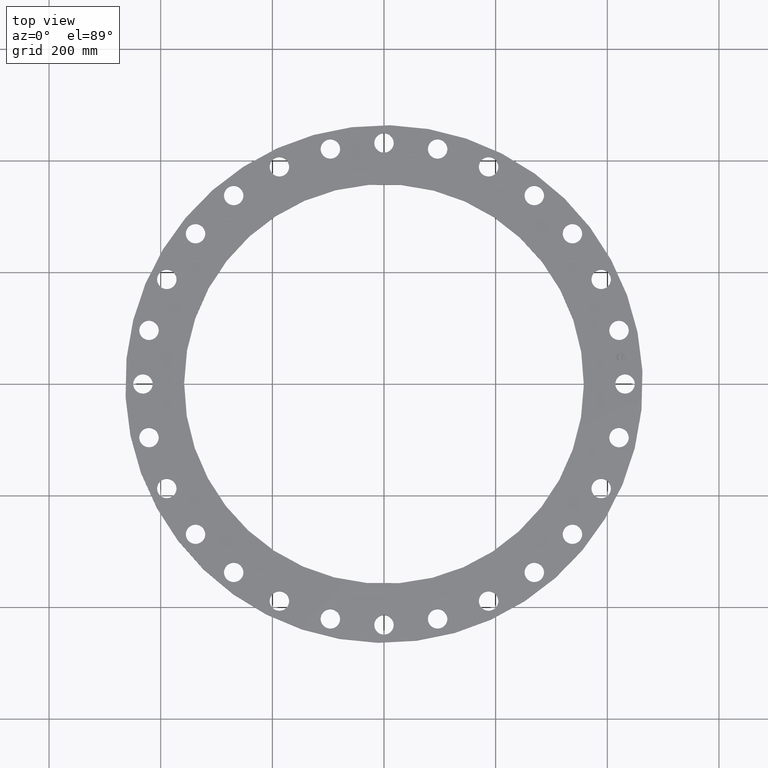
[diagram: clean part render]
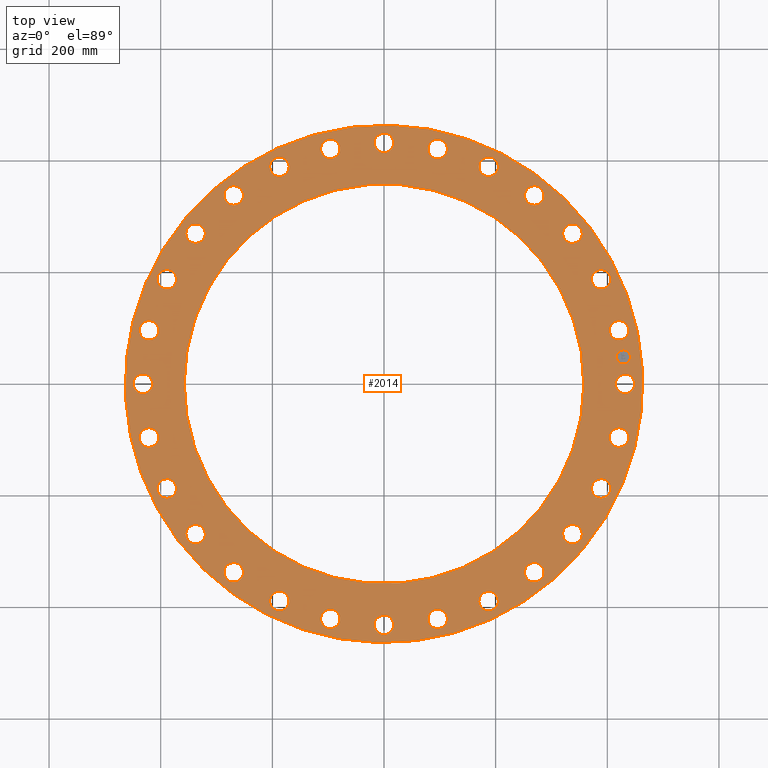
[diagram: same view with one face highlighted and labeled with its STEP entity id]
A machine part, top view. The second image highlights one B-rep face of the part: STEP entity #2014.
In plain terms, the highlighted planar face has unit normal (0, 0, 1).
Its self-contained STEP definition (entity closure, byte-faithful):
#65=AXIS2_PLACEMENT_3D('Circle Axis2P3D',#63,#64,$) ;
#82=AXIS2_PLACEMENT_3D('Circle Axis2P3D',#80,#81,$) ;
#108=AXIS2_PLACEMENT_3D('Circle Axis2P3D',#106,#107,$) ;
#134=AXIS2_PLACEMENT_3D('Circle Axis2P3D',#132,#133,$) ;
#179=AXIS2_PLACEMENT_3D('Circle Axis2P3D',#177,#178,$) ;
#196=AXIS2_PLACEMENT_3D('Circle Axis2P3D',#194,#195,$) ;
#731=AXIS2_PLACEMENT_3D('Circle Axis2P3D',#729,#730,$) ;
#743=AXIS2_PLACEMENT_3D('Circle Axis2P3D',#741,#742,$) ;
#774=AXIS2_PLACEMENT_3D('Circle Axis2P3D',#772,#773,$) ;
#786=AXIS2_PLACEMENT_3D('Circle Axis2P3D',#784,#785,$) ;
#817=AXIS2_PLACEMENT_3D('Circle Axis2P3D',#815,#816,$) ;
#829=AXIS2_PLACEMENT_3D('Circle Axis2P3D',#827,#828,$) ;
#860=AXIS2_PLACEMENT_3D('Circle Axis2P3D',#858,#859,$) ;
#872=AXIS2_PLACEMENT_3D('Circle Axis2P3D',#870,#871,$) ;
#903=AXIS2_PLACEMENT_3D('Circle Axis2P3D',#901,#902,$) ;
#915=AXIS2_PLACEMENT_3D('Circle Axis2P3D',#913,#914,$) ;
#946=AXIS2_PLACEMENT_3D('Circle Axis2P3D',#944,#945,$) ;
#958=AXIS2_PLACEMENT_3D('Circle Axis2P3D',#956,#957,$) ;
#989=AXIS2_PLACEMENT_3D('Circle Axis2P3D',#987,#988,$) ;
#1001=AXIS2_PLACEMENT_3D('Circle Axis2P3D',#999,#1000,$) ;
#1032=AXIS2_PLACEMENT_3D('Circle Axis2P3D',#1030,#1031,$) ;
#1044=AXIS2_PLACEMENT_3D('Circle Axis2P3D',#1042,#1043,$) ;
#1075=AXIS2_PLACEMENT_3D('Circle Axis2P3D',#1073,#1074,$) ;
#1087=AXIS2_PLACEMENT_3D('Circle Axis2P3D',#1085,#1086,$) ;
#1118=AXIS2_PLACEMENT_3D('Circle Axis2P3D',#1116,#1117,$) ;
#1130=AXIS2_PLACEMENT_3D('Circle Axis2P3D',#1128,#1129,$) ;
#1161=AXIS2_PLACEMENT_3D('Circle Axis2P3D',#1159,#1160,$) ;
#1173=AXIS2_PLACEMENT_3D('Circle Axis2P3D',#1171,#1172,$) ;
#1204=AXIS2_PLACEMENT_3D('Circle Axis2P3D',#1202,#1203,$) ;
#1216=AXIS2_PLACEMENT_3D('Circle Axis2P3D',#1214,#1215,$) ;
#1247=AXIS2_PLACEMENT_3D('Circle Axis2P3D',#1245,#1246,$) ;
#1259=AXIS2_PLACEMENT_3D('Circle Axis2P3D',#1257,#1258,$) ;
#1290=AXIS2_PLACEMENT_3D('Circle Axis2P3D',#1288,#1289,$) ;
#1302=AXIS2_PLACEMENT_3D('Circle Axis2P3D',#1300,#1301,$) ;
#1333=AXIS2_PLACEMENT_3D('Circle Axis2P3D',#1331,#1332,$) ;
#1345=AXIS2_PLACEMENT_3D('Circle Axis2P3D',#1343,#1344,$) ;
#1376=AXIS2_PLACEMENT_3D('Circle Axis2P3D',#1374,#1375,$) ;
#1388=AXIS2_PLACEMENT_3D('Circle Axis2P3D',#1386,#1387,$) ;
#1419=AXIS2_PLACEMENT_3D('Circle Axis2P3D',#1417,#1418,$) ;
#1431=AXIS2_PLACEMENT_3D('Circle Axis2P3D',#1429,#1430,$) ;
#1462=AXIS2_PLACEMENT_3D('Circle Axis2P3D',#1460,#1461,$) ;
#1474=AXIS2_PLACEMENT_3D('Circle Axis2P3D',#1472,#1473,$) ;
#1505=AXIS2_PLACEMENT_3D('Circle Axis2P3D',#1503,#1504,$) ;
#1517=AXIS2_PLACEMENT_3D('Circle Axis2P3D',#1515,#1516,$) ;
#1548=AXIS2_PLACEMENT_3D('Circle Axis2P3D',#1546,#1547,$) ;
#1560=AXIS2_PLACEMENT_3D('Circle Axis2P3D',#1558,#1559,$) ;
#1591=AXIS2_PLACEMENT_3D('Circle Axis2P3D',#1589,#1590,$) ;
#1603=AXIS2_PLACEMENT_3D('Circle Axis2P3D',#1601,#1602,$) ;
#1634=AXIS2_PLACEMENT_3D('Circle Axis2P3D',#1632,#1633,$) ;
#1646=AXIS2_PLACEMENT_3D('Circle Axis2P3D',#1644,#1645,$) ;
#1677=AXIS2_PLACEMENT_3D('Circle Axis2P3D',#1675,#1676,$) ;
#1689=AXIS2_PLACEMENT_3D('Circle Axis2P3D',#1687,#1688,$) ;
#1720=AXIS2_PLACEMENT_3D('Circle Axis2P3D',#1718,#1719,$) ;
#1732=AXIS2_PLACEMENT_3D('Circle Axis2P3D',#1730,#1731,$) ;
#1763=AXIS2_PLACEMENT_3D('Circle Axis2P3D',#1761,#1762,$) ;
#1775=AXIS2_PLACEMENT_3D('Circle Axis2P3D',#1773,#1774,$) ;
#1806=AXIS2_PLACEMENT_3D('Circle Axis2P3D',#1804,#1805,$) ;
#1818=AXIS2_PLACEMENT_3D('Circle Axis2P3D',#1816,#1817,$) ;
#1849=AXIS2_PLACEMENT_3D('Circle Axis2P3D',#1847,#1848,$) ;
#1861=AXIS2_PLACEMENT_3D('Circle Axis2P3D',#1859,#1860,$) ;
#1874=AXIS2_PLACEMENT_3D('Plane Axis2P3D',#1871,#1872,#1873) ;
#1998=AXIS2_PLACEMENT_3D('Circle Axis2P3D',#1996,#1997,$) ;
#2007=AXIS2_PLACEMENT_3D('Circle Axis2P3D',#2005,#2006,$) ;
#46=CARTESIAN_POINT('Vertex',(16.3966619888,0.329605057792,0.875000000004)) ;
#60=CARTESIAN_POINT('Vertex',(17.6033380114,-0.329605057792,0.875000000004)) ;
#63=CARTESIAN_POINT('Axis2P3D Location',(17.0000000001,0.,0.875000000004)) ;
#80=CARTESIAN_POINT('Axis2P3D Location',(17.0000000001,0.,0.875000000004)) ;
#103=CARTESIAN_POINT('Vertex',(16.0158817546,8.74951607956,0.875000000004)) ;
#106=CARTESIAN_POINT('Axis2P3D Location',(0.,0.,0.875000000004)) ;
#110=CARTESIAN_POINT('Vertex',(-16.0158817546,-8.74951607956,0.875000000004)) ;
#132=CARTESIAN_POINT('Axis2P3D Location',(0.,0.,0.875000000004)) ;
#160=CARTESIAN_POINT('Vertex',(-12.3695262099,6.75750296665,0.875000000004)) ;
#174=CARTESIAN_POINT('Vertex',(12.3695262099,-6.75750296665,0.875000000004)) ;
#177=CARTESIAN_POINT('Axis2P3D Location',(-6.64385432059E-016,-2.09805925913E-016,0.875000000004)) ;
#194=CARTESIAN_POINT('Axis2P3D Location',(-6.64385432059E-016,-2.09805925913E-016,0.875000000004)) ;
#719=CARTESIAN_POINT('Vertex',(15.9122194142,3.96994171034,0.875000000004)) ;
#726=CARTESIAN_POINT('Vertex',(17.2353296002,3.5957700442,0.875000000004)) ;
#729=CARTESIAN_POINT('Axis2P3D Location',(16.5737745072,3.78285587727,0.875000000004)) ;
#741=CARTESIAN_POINT('Axis2P3D Location',(16.5737745072,3.78285587727,0.875000000004)) ;
#762=CARTESIAN_POINT('Vertex',(14.6298717145,7.41120890851,0.875000000004)) ;
#769=CARTESIAN_POINT('Vertex',(16.0030697943,7.34083822155,0.875000000004)) ;
#772=CARTESIAN_POINT('Axis2P3D Location',(15.3164707544,7.37602356503,0.875000000004)) ;
#784=CARTESIAN_POINT('Axis2P3D Location',(15.3164707544,7.37602356503,0.875000000004)) ;
#805=CARTESIAN_POINT('Vertex',(12.613921158,10.4808471455,0.875000000004)) ;
#812=CARTESIAN_POINT('Vertex',(13.968349246,10.7178061178,0.875000000004)) ;
#815=CARTESIAN_POINT('Axis2P3D Location',(13.291135202,10.5993266316,0.875000000004)) ;
#827=CARTESIAN_POINT('Axis2P3D Location',(13.291135202,10.5993266316,0.875000000004)) ;
#848=CARTESIAN_POINT('Vertex',(9.96545592356,13.0249319424,0.875000000004)) ;
#855=CARTESIAN_POINT('Vertex',(11.2331973397,13.5573384616,0.875000000004)) ;
#858=CARTESIAN_POINT('Axis2P3D Location',(10.5993266316,13.291135202,0.875000000004)) ;
#870=CARTESIAN_POINT('Axis2P3D Location',(10.5993266316,13.291135202,0.875000000004)) ;
#891=CARTESIAN_POINT('Vertex',(6.81728111696,14.9158922643,0.875000000004)) ;
#898=CARTESIAN_POINT('Vertex',(7.9347660131,15.7170492445,0.875000000004)) ;
#901=CARTESIAN_POINT('Axis2P3D Location',(7.37602356503,15.3164707544,0.875000000004)) ;
#913=CARTESIAN_POINT('Axis2P3D Location',(7.37602356503,15.3164707544,0.875000000004)) ;
#934=CARTESIAN_POINT('Vertex',(3.32725936867,16.0589074648,0.875000000004)) ;
#941=CARTESIAN_POINT('Vertex',(4.23845238588,17.0886415496,0.875000000004)) ;
#944=CARTESIAN_POINT('Axis2P3D Location',(3.78285587727,16.5737745072,0.875000000004)) ;
#956=CARTESIAN_POINT('Axis2P3D Location',(3.78285587727,16.5737745072,0.875000000004)) ;
#977=CARTESIAN_POINT('Vertex',(-0.329605057792,16.3966619888,0.875000000004)) ;
#984=CARTESIAN_POINT('Vertex',(0.329605057792,17.6033380114,0.875000000004)) ;
#987=CARTESIAN_POINT('Axis2P3D Location',(2.57777818661E-015,17.0000000001,0.875000000004)) ;
#999=CARTESIAN_POINT('Axis2P3D Location',(2.57777818661E-015,17.0000000001,0.875000000004)) ;
#1020=CARTESIAN_POINT('Vertex',(-3.96994171034,15.9122194142,0.875000000004)) ;
#1027=CARTESIAN_POINT('Vertex',(-3.5957700442,17.2353296002,0.875000000004)) ;
#1030=CARTESIAN_POINT('Axis2P3D Location',(-3.78285587727,16.5737745072,0.875000000004)) ;
#1042=CARTESIAN_POINT('Axis2P3D Location',(-3.78285587727,16.5737745072,0.875000000004)) ;
#1063=CARTESIAN_POINT('Vertex',(-7.41120890851,14.6298717145,0.875000000004)) ;
#1070=CARTESIAN_POINT('Vertex',(-7.34083822155,16.0030697943,0.875000000004)) ;
#1073=CARTESIAN_POINT('Axis2P3D Location',(-7.37602356503,15.3164707544,0.875000000004)) ;
#1085=CARTESIAN_POINT('Axis2P3D Location',(-7.37602356503,15.3164707544,0.875000000004)) ;
#1106=CARTESIAN_POINT('Vertex',(-10.4808471455,12.613921158,0.875000000004)) ;
#1113=CARTESIAN_POINT('Vertex',(-10.7178061178,13.968349246,0.875000000004)) ;
#1116=CARTESIAN_POINT('Axis2P3D Location',(-10.5993266316,13.291135202,0.875000000004)) ;
#1128=CARTESIAN_POINT('Axis2P3D Location',(-10.5993266316,13.291135202,0.875000000004)) ;
#1149=CARTESIAN_POINT('Vertex',(-13.0249319424,9.96545592356,0.875000000004)) ;
#1156=CARTESIAN_POINT('Vertex',(-13.5573384616,11.2331973397,0.875000000004)) ;
#1159=CARTESIAN_POINT('Axis2P3D Location',(-13.291135202,10.5993266316,0.875000000004)) ;
#1171=CARTESIAN_POINT('Axis2P3D Location',(-13.291135202,10.5993266316,0.875000000004)) ;
#1192=CARTESIAN_POINT('Vertex',(-14.9158922643,6.81728111696,0.875000000004)) ;
#1199=CARTESIAN_POINT('Vertex',(-15.7170492445,7.9347660131,0.875000000004)) ;
#1202=CARTESIAN_POINT('Axis2P3D Location',(-15.3164707544,7.37602356503,0.875000000004)) ;
#1214=CARTESIAN_POINT('Axis2P3D Location',(-15.3164707544,7.37602356503,0.875000000004)) ;
#1235=CARTESIAN_POINT('Vertex',(-16.0589074648,3.32725936867,0.875000000004)) ;
#1242=CARTESIAN_POINT('Vertex',(-17.0886415496,4.23845238588,0.875000000004)) ;
#1245=CARTESIAN_POINT('Axis2P3D Location',(-16.5737745072,3.78285587727,0.875000000004)) ;
#1257=CARTESIAN_POINT('Axis2P3D Location',(-16.5737745072,3.78285587727,0.875000000004)) ;
#1278=CARTESIAN_POINT('Vertex',(-16.3966619888,-0.329605057792,0.875000000004)) ;
#1285=CARTESIAN_POINT('Vertex',(-17.6033380114,0.329605057792,0.875000000004)) ;
#1288=CARTESIAN_POINT('Axis2P3D Location',(-17.0000000001,9.63141612604E-015,0.875000000004)) ;
#1300=CARTESIAN_POINT('Axis2P3D Location',(-17.0000000001,9.63141612604E-015,0.875000000004)) ;
#1321=CARTESIAN_POINT('Vertex',(-15.9122194142,-3.96994171034,0.875000000004)) ;
#1328=CARTESIAN_POINT('Vertex',(-17.2353296002,-3.5957700442,0.875000000004)) ;
#1331=CARTESIAN_POINT('Axis2P3D Location',(-16.5737745072,-3.78285587727,0.875000000004)) ;
#1343=CARTESIAN_POINT('Axis2P3D Location',(-16.5737745072,-3.78285587727,0.875000000004)) ;
#1364=CARTESIAN_POINT('Vertex',(-14.6298717145,-7.41120890851,0.875000000004)) ;
#1371=CARTESIAN_POINT('Vertex',(-16.0030697943,-7.34083822155,0.875000000004)) ;
#1374=CARTESIAN_POINT('Axis2P3D Location',(-15.3164707544,-7.37602356503,0.875000000004)) ;
#1386=CARTESIAN_POINT('Axis2P3D Location',(-15.3164707544,-7.37602356503,0.875000000004)) ;
#1407=CARTESIAN_POINT('Vertex',(-12.613921158,-10.4808471455,0.875000000004)) ;
#1414=CARTESIAN_POINT('Vertex',(-13.968349246,-10.7178061178,0.875000000004)) ;
#1417=CARTESIAN_POINT('Axis2P3D Location',(-13.291135202,-10.5993266316,0.875000000004)) ;
#1429=CARTESIAN_POINT('Axis2P3D Location',(-13.291135202,-10.5993266316,0.875000000004)) ;
#1450=CARTESIAN_POINT('Vertex',(-9.96545592356,-13.0249319424,0.875000000004)) ;
#1457=CARTESIAN_POINT('Vertex',(-11.2331973397,-13.5573384616,0.875000000004)) ;
#1460=CARTESIAN_POINT('Axis2P3D Location',(-10.5993266316,-13.291135202,0.875000000004)) ;
#1472=CARTESIAN_POINT('Axis2P3D Location',(-10.5993266316,-13.291135202,0.875000000004)) ;
#1493=CARTESIAN_POINT('Vertex',(-6.81728111696,-14.9158922643,0.875000000004)) ;
#1500=CARTESIAN_POINT('Vertex',(-7.9347660131,-15.7170492445,0.875000000004)) ;
#1503=CARTESIAN_POINT('Axis2P3D Location',(-7.37602356503,-15.3164707544,0.875000000004)) ;
#1515=CARTESIAN_POINT('Axis2P3D Location',(-7.37602356503,-15.3164707544,0.875000000004)) ;
#1536=CARTESIAN_POINT('Vertex',(-3.32725936867,-16.0589074648,0.875000000004)) ;
#1543=CARTESIAN_POINT('Vertex',(-4.23845238588,-17.0886415496,0.875000000004)) ;
#1546=CARTESIAN_POINT('Axis2P3D Location',(-3.78285587727,-16.5737745072,0.875000000004)) ;
#1558=CARTESIAN_POINT('Axis2P3D Location',(-3.78285587727,-16.5737745072,0.875000000004)) ;
#1579=CARTESIAN_POINT('Vertex',(0.329605057792,-16.3966619888,0.875000000004)) ;
#1586=CARTESIAN_POINT('Vertex',(-0.329605057792,-17.6033380114,0.875000000004)) ;
#1589=CARTESIAN_POINT('Axis2P3D Location',(-8.84919461428E-016,-17.0000000001,0.875000000004)) ;
#1601=CARTESIAN_POINT('Axis2P3D Location',(-8.84919461428E-016,-17.0000000001,0.875000000004)) ;
#1622=CARTESIAN_POINT('Vertex',(3.96994171034,-15.9122194142,0.875000000004)) ;
#1629=CARTESIAN_POINT('Vertex',(3.5957700442,-17.2353296002,0.875000000004)) ;
#1632=CARTESIAN_POINT('Axis2P3D Location',(3.78285587727,-16.5737745072,0.875000000004)) ;
#1644=CARTESIAN_POINT('Axis2P3D Location',(3.78285587727,-16.5737745072,0.875000000004)) ;
#1665=CARTESIAN_POINT('Vertex',(7.41120890851,-14.6298717145,0.875000000004)) ;
#1672=CARTESIAN_POINT('Vertex',(7.34083822155,-16.0030697943,0.875000000004)) ;
#1675=CARTESIAN_POINT('Axis2P3D Location',(7.37602356503,-15.3164707544,0.875000000004)) ;
#1687=CARTESIAN_POINT('Axis2P3D Location',(7.37602356503,-15.3164707544,0.875000000004)) ;
#1708=CARTESIAN_POINT('Vertex',(10.4808471455,-12.613921158,0.875000000004)) ;
#1715=CARTESIAN_POINT('Vertex',(10.7178061178,-13.968349246,0.875000000004)) ;
#1718=CARTESIAN_POINT('Axis2P3D Location',(10.5993266316,-13.291135202,0.875000000004)) ;
#1730=CARTESIAN_POINT('Axis2P3D Location',(10.5993266316,-13.291135202,0.875000000004)) ;
#1751=CARTESIAN_POINT('Vertex',(13.0249319424,-9.96545592356,0.875000000004)) ;
#1758=CARTESIAN_POINT('Vertex',(13.5573384616,-11.2331973397,0.875000000004)) ;
#1761=CARTESIAN_POINT('Axis2P3D Location',(13.291135202,-10.5993266316,0.875000000004)) ;
#1773=CARTESIAN_POINT('Axis2P3D Location',(13.291135202,-10.5993266316,0.875000000004)) ;
#1794=CARTESIAN_POINT('Vertex',(14.9158922643,-6.81728111696,0.875000000004)) ;
#1801=CARTESIAN_POINT('Vertex',(15.7170492445,-7.9347660131,0.875000000004)) ;
#1804=CARTESIAN_POINT('Axis2P3D Location',(15.3164707544,-7.37602356503,0.875000000004)) ;
#1816=CARTESIAN_POINT('Axis2P3D Location',(15.3164707544,-7.37602356503,0.875000000004)) ;
#1837=CARTESIAN_POINT('Vertex',(16.0589074648,-3.32725936867,0.875000000004)) ;
#1844=CARTESIAN_POINT('Vertex',(17.0886415496,-4.23845238588,0.875000000004)) ;
#1847=CARTESIAN_POINT('Axis2P3D Location',(16.5737745072,-3.78285587727,0.875000000004)) ;
#1859=CARTESIAN_POINT('Axis2P3D Location',(16.5737745072,-3.78285587727,0.875000000004)) ;
#1871=CARTESIAN_POINT('Axis2P3D Location',(18.2500000001,0.,0.875000000004)) ;
#1996=CARTESIAN_POINT('Axis2P3D Location',(16.8931075683,1.90339609376,0.875000000004)) ;
#2000=CARTESIAN_POINT('Vertex',(16.8371253308,2.40025219374,0.875000000004)) ;
#2002=CARTESIAN_POINT('Vertex',(16.9490898057,1.40653999378,0.875000000004)) ;
#2005=CARTESIAN_POINT('Axis2P3D Location',(16.8931075683,1.90339609376,0.875000000004)) ;
#64=DIRECTION('Axis2P3D Direction',(0.,-0.,-0.0393700787402)) ;
#81=DIRECTION('Axis2P3D Direction',(0.,-0.,-0.0393700787402)) ;
#107=DIRECTION('Axis2P3D Direction',(0.,0.,0.0393700787402)) ;
#133=DIRECTION('Axis2P3D Direction',(0.,0.,0.0393700787402)) ;
#178=DIRECTION('Axis2P3D Direction',(0.,-0.,-0.0393700787402)) ;
#195=DIRECTION('Axis2P3D Direction',(0.,-0.,-0.0393700787402)) ;
#730=DIRECTION('Axis2P3D Direction',(0.,0.,-0.0393700787402)) ;
#742=DIRECTION('Axis2P3D Direction',(0.,0.,-0.0393700787402)) ;
#773=DIRECTION('Axis2P3D Direction',(0.,0.,-0.0393700787402)) ;
#785=DIRECTION('Axis2P3D Direction',(0.,0.,-0.0393700787402)) ;
#816=DIRECTION('Axis2P3D Direction',(0.,0.,-0.0393700787402)) ;
#828=DIRECTION('Axis2P3D Direction',(0.,0.,-0.0393700787402)) ;
#859=DIRECTION('Axis2P3D Direction',(0.,0.,-0.0393700787402)) ;
#871=DIRECTION('Axis2P3D Direction',(0.,0.,-0.0393700787402)) ;
#902=DIRECTION('Axis2P3D Direction',(0.,0.,-0.0393700787402)) ;
#914=DIRECTION('Axis2P3D Direction',(0.,0.,-0.0393700787402)) ;
#945=DIRECTION('Axis2P3D Direction',(0.,0.,-0.0393700787402)) ;
#957=DIRECTION('Axis2P3D Direction',(0.,0.,-0.0393700787402)) ;
#988=DIRECTION('Axis2P3D Direction',(0.,0.,-0.0393700787402)) ;
#1000=DIRECTION('Axis2P3D Direction',(0.,0.,-0.0393700787402)) ;
#1031=DIRECTION('Axis2P3D Direction',(0.,0.,-0.0393700787402)) ;
#1043=DIRECTION('Axis2P3D Direction',(0.,0.,-0.0393700787402)) ;
#1074=DIRECTION('Axis2P3D Direction',(0.,0.,-0.0393700787402)) ;
#1086=DIRECTION('Axis2P3D Direction',(0.,0.,-0.0393700787402)) ;
#1117=DIRECTION('Axis2P3D Direction',(0.,0.,-0.0393700787402)) ;
#1129=DIRECTION('Axis2P3D Direction',(0.,0.,-0.0393700787402)) ;
#1160=DIRECTION('Axis2P3D Direction',(0.,0.,-0.0393700787402)) ;
#1172=DIRECTION('Axis2P3D Direction',(0.,0.,-0.0393700787402)) ;
#1203=DIRECTION('Axis2P3D Direction',(0.,0.,-0.0393700787402)) ;
#1215=DIRECTION('Axis2P3D Direction',(0.,0.,-0.0393700787402)) ;
#1246=DIRECTION('Axis2P3D Direction',(0.,0.,-0.0393700787402)) ;
#1258=DIRECTION('Axis2P3D Direction',(0.,0.,-0.0393700787402)) ;
#1289=DIRECTION('Axis2P3D Direction',(0.,0.,-0.0393700787402)) ;
#1301=DIRECTION('Axis2P3D Direction',(0.,0.,-0.0393700787402)) ;
#1332=DIRECTION('Axis2P3D Direction',(-0.,0.,-0.0393700787402)) ;
#1344=DIRECTION('Axis2P3D Direction',(-0.,0.,-0.0393700787402)) ;
#1375=DIRECTION('Axis2P3D Direction',(-0.,0.,-0.0393700787402)) ;
#1387=DIRECTION('Axis2P3D Direction',(-0.,0.,-0.0393700787402)) ;
#1418=DIRECTION('Axis2P3D Direction',(-0.,0.,-0.0393700787402)) ;
#1430=DIRECTION('Axis2P3D Direction',(-0.,0.,-0.0393700787402)) ;
#1461=DIRECTION('Axis2P3D Direction',(-0.,0.,-0.0393700787402)) ;
#1473=DIRECTION('Axis2P3D Direction',(-0.,0.,-0.0393700787402)) ;
#1504=DIRECTION('Axis2P3D Direction',(-0.,0.,-0.0393700787402)) ;
#1516=DIRECTION('Axis2P3D Direction',(-0.,0.,-0.0393700787402)) ;
#1547=DIRECTION('Axis2P3D Direction',(-0.,0.,-0.0393700787402)) ;
#1559=DIRECTION('Axis2P3D Direction',(-0.,0.,-0.0393700787402)) ;
#1590=DIRECTION('Axis2P3D Direction',(-0.,0.,-0.0393700787402)) ;
#1602=DIRECTION('Axis2P3D Direction',(-0.,0.,-0.0393700787402)) ;
#1633=DIRECTION('Axis2P3D Direction',(0.,-0.,-0.0393700787402)) ;
#1645=DIRECTION('Axis2P3D Direction',(0.,-0.,-0.0393700787402)) ;
#1676=DIRECTION('Axis2P3D Direction',(0.,-0.,-0.0393700787402)) ;
#1688=DIRECTION('Axis2P3D Direction',(0.,-0.,-0.0393700787402)) ;
#1719=DIRECTION('Axis2P3D Direction',(0.,-0.,-0.0393700787402)) ;
#1731=DIRECTION('Axis2P3D Direction',(0.,-0.,-0.0393700787402)) ;
#1762=DIRECTION('Axis2P3D Direction',(0.,-0.,-0.0393700787402)) ;
#1774=DIRECTION('Axis2P3D Direction',(0.,-0.,-0.0393700787402)) ;
#1805=DIRECTION('Axis2P3D Direction',(0.,-0.,-0.0393700787402)) ;
#1817=DIRECTION('Axis2P3D Direction',(0.,-0.,-0.0393700787402)) ;
#1848=DIRECTION('Axis2P3D Direction',(0.,-0.,-0.0393700787402)) ;
#1860=DIRECTION('Axis2P3D Direction',(0.,-0.,-0.0393700787402)) ;
#1872=DIRECTION('Axis2P3D Direction',(0.,0.,0.0393700787402)) ;
#1873=DIRECTION('Axis2P3D XDirection',(0.0393700787402,0.,0.)) ;
#1997=DIRECTION('Axis2P3D Direction',(0.,0.,0.0393700787402)) ;
#2006=DIRECTION('Axis2P3D Direction',(0.,0.,0.0393700787402)) ;
#1877=ORIENTED_EDGE('',*,*,#112,.T.) ;
#1878=ORIENTED_EDGE('',*,*,#136,.T.) ;
#1881=ORIENTED_EDGE('',*,*,#84,.F.) ;
#1882=ORIENTED_EDGE('',*,*,#67,.F.) ;
#1885=ORIENTED_EDGE('',*,*,#198,.F.) ;
#1886=ORIENTED_EDGE('',*,*,#181,.F.) ;
#1889=ORIENTED_EDGE('',*,*,#733,.F.) ;
#1890=ORIENTED_EDGE('',*,*,#745,.F.) ;
#1893=ORIENTED_EDGE('',*,*,#776,.F.) ;
#1894=ORIENTED_EDGE('',*,*,#788,.F.) ;
#1897=ORIENTED_EDGE('',*,*,#819,.F.) ;
#1898=ORIENTED_EDGE('',*,*,#831,.F.) ;
#1901=ORIENTED_EDGE('',*,*,#862,.F.) ;
#1902=ORIENTED_EDGE('',*,*,#874,.F.) ;
#1905=ORIENTED_EDGE('',*,*,#905,.F.) ;
#1906=ORIENTED_EDGE('',*,*,#917,.F.) ;
#1909=ORIENTED_EDGE('',*,*,#948,.F.) ;
#1910=ORIENTED_EDGE('',*,*,#960,.F.) ;
#1913=ORIENTED_EDGE('',*,*,#991,.F.) ;
#1914=ORIENTED_EDGE('',*,*,#1003,.F.) ;
#1917=ORIENTED_EDGE('',*,*,#1034,.F.) ;
#1918=ORIENTED_EDGE('',*,*,#1046,.F.) ;
#1921=ORIENTED_EDGE('',*,*,#1077,.F.) ;
#1922=ORIENTED_EDGE('',*,*,#1089,.F.) ;
#1925=ORIENTED_EDGE('',*,*,#1120,.F.) ;
#1926=ORIENTED_EDGE('',*,*,#1132,.F.) ;
#1929=ORIENTED_EDGE('',*,*,#1163,.F.) ;
#1930=ORIENTED_EDGE('',*,*,#1175,.F.) ;
#1933=ORIENTED_EDGE('',*,*,#1206,.F.) ;
#1934=ORIENTED_EDGE('',*,*,#1218,.F.) ;
#1937=ORIENTED_EDGE('',*,*,#1249,.F.) ;
#1938=ORIENTED_EDGE('',*,*,#1261,.F.) ;
#1941=ORIENTED_EDGE('',*,*,#1292,.F.) ;
#1942=ORIENTED_EDGE('',*,*,#1304,.F.) ;
#1945=ORIENTED_EDGE('',*,*,#1335,.F.) ;
#1946=ORIENTED_EDGE('',*,*,#1347,.F.) ;
#1949=ORIENTED_EDGE('',*,*,#1378,.F.) ;
#1950=ORIENTED_EDGE('',*,*,#1390,.F.) ;
#1953=ORIENTED_EDGE('',*,*,#1421,.F.) ;
#1954=ORIENTED_EDGE('',*,*,#1433,.F.) ;
#1957=ORIENTED_EDGE('',*,*,#1464,.F.) ;
#1958=ORIENTED_EDGE('',*,*,#1476,.F.) ;
#1961=ORIENTED_EDGE('',*,*,#1507,.F.) ;
#1962=ORIENTED_EDGE('',*,*,#1519,.F.) ;
#1965=ORIENTED_EDGE('',*,*,#1550,.F.) ;
#1966=ORIENTED_EDGE('',*,*,#1562,.F.) ;
#1969=ORIENTED_EDGE('',*,*,#1593,.F.) ;
#1970=ORIENTED_EDGE('',*,*,#1605,.F.) ;
#1973=ORIENTED_EDGE('',*,*,#1636,.F.) ;
#1974=ORIENTED_EDGE('',*,*,#1648,.F.) ;
#1977=ORIENTED_EDGE('',*,*,#1679,.F.) ;
#1978=ORIENTED_EDGE('',*,*,#1691,.F.) ;
#1981=ORIENTED_EDGE('',*,*,#1722,.F.) ;
#1982=ORIENTED_EDGE('',*,*,#1734,.F.) ;
#1985=ORIENTED_EDGE('',*,*,#1765,.F.) ;
#1986=ORIENTED_EDGE('',*,*,#1777,.F.) ;
#1989=ORIENTED_EDGE('',*,*,#1808,.F.) ;
#1990=ORIENTED_EDGE('',*,*,#1820,.F.) ;
#1993=ORIENTED_EDGE('',*,*,#1851,.F.) ;
#1994=ORIENTED_EDGE('',*,*,#1863,.F.) ;
#2011=ORIENTED_EDGE('',*,*,#2004,.F.) ;
#2012=ORIENTED_EDGE('',*,*,#2009,.F.) ;
#1883=FACE_BOUND('',#1880,.T.) ;
#1887=FACE_BOUND('',#1884,.T.) ;
#1891=FACE_BOUND('',#1888,.T.) ;
#1895=FACE_BOUND('',#1892,.T.) ;
#1899=FACE_BOUND('',#1896,.T.) ;
#1903=FACE_BOUND('',#1900,.T.) ;
#1907=FACE_BOUND('',#1904,.T.) ;
#1911=FACE_BOUND('',#1908,.T.) ;
#1915=FACE_BOUND('',#1912,.T.) ;
#1919=FACE_BOUND('',#1916,.T.) ;
#1923=FACE_BOUND('',#1920,.T.) ;
#1927=FACE_BOUND('',#1924,.T.) ;
#1931=FACE_BOUND('',#1928,.T.) ;
#1935=FACE_BOUND('',#1932,.T.) ;
#1939=FACE_BOUND('',#1936,.T.) ;
#1943=FACE_BOUND('',#1940,.T.) ;
#1947=FACE_BOUND('',#1944,.T.) ;
#1951=FACE_BOUND('',#1948,.T.) ;
#1955=FACE_BOUND('',#1952,.T.) ;
#1959=FACE_BOUND('',#1956,.T.) ;
#1963=FACE_BOUND('',#1960,.T.) ;
#1967=FACE_BOUND('',#1964,.T.) ;
#1971=FACE_BOUND('',#1968,.T.) ;
#1975=FACE_BOUND('',#1972,.T.) ;
#1979=FACE_BOUND('',#1976,.T.) ;
#1983=FACE_BOUND('',#1980,.T.) ;
#1987=FACE_BOUND('',#1984,.T.) ;
#1991=FACE_BOUND('',#1988,.T.) ;
#1995=FACE_BOUND('',#1992,.T.) ;
#2013=FACE_BOUND('',#2010,.T.) ;
#2014=ADVANCED_FACE('PartBody',(#1879,#1883,#1887,#1891,#1895,#1899,#1903,#1907,#1911,#1915,#1919,#1923,#1927,#1931,#1935,#1939,#1943,#1947,#1951,#1955,#1959,#1963,#1967,#1971,#1975,#1979,#1983,#1987,#1991,#1995,#2013),#1875,.T.) ;
#66=CIRCLE('generated circle',#65,0.687500000003) ;
#83=CIRCLE('generated circle',#82,0.687500000003) ;
#109=CIRCLE('generated circle',#108,18.2500000001) ;
#135=CIRCLE('generated circle',#134,18.2500000001) ;
#180=CIRCLE('generated circle',#179,14.0950000001) ;
#197=CIRCLE('generated circle',#196,14.0950000001) ;
#732=CIRCLE('generated circle',#731,0.687500000003) ;
#744=CIRCLE('generated circle',#743,0.687500000003) ;
#775=CIRCLE('generated circle',#774,0.687500000003) ;
#787=CIRCLE('generated circle',#786,0.687500000003) ;
#818=CIRCLE('generated circle',#817,0.687500000003) ;
#830=CIRCLE('generated circle',#829,0.687500000003) ;
#861=CIRCLE('generated circle',#860,0.687500000003) ;
#873=CIRCLE('generated circle',#872,0.687500000003) ;
#904=CIRCLE('generated circle',#903,0.687500000003) ;
#916=CIRCLE('generated circle',#915,0.687500000003) ;
#947=CIRCLE('generated circle',#946,0.687500000003) ;
#959=CIRCLE('generated circle',#958,0.687500000003) ;
#990=CIRCLE('generated circle',#989,0.687500000003) ;
#1002=CIRCLE('generated circle',#1001,0.687500000003) ;
#1033=CIRCLE('generated circle',#1032,0.687500000003) ;
#1045=CIRCLE('generated circle',#1044,0.687500000003) ;
#1076=CIRCLE('generated circle',#1075,0.687500000003) ;
#1088=CIRCLE('generated circle',#1087,0.687500000003) ;
#1119=CIRCLE('generated circle',#1118,0.687500000003) ;
#1131=CIRCLE('generated circle',#1130,0.687500000003) ;
#1162=CIRCLE('generated circle',#1161,0.687500000003) ;
#1174=CIRCLE('generated circle',#1173,0.687500000003) ;
#1205=CIRCLE('generated circle',#1204,0.687500000003) ;
#1217=CIRCLE('generated circle',#1216,0.687500000003) ;
#1248=CIRCLE('generated circle',#1247,0.687500000003) ;
#1260=CIRCLE('generated circle',#1259,0.687500000003) ;
#1291=CIRCLE('generated circle',#1290,0.687500000003) ;
#1303=CIRCLE('generated circle',#1302,0.687500000003) ;
#1334=CIRCLE('generated circle',#1333,0.687500000003) ;
#1346=CIRCLE('generated circle',#1345,0.687500000003) ;
#1377=CIRCLE('generated circle',#1376,0.687500000003) ;
#1389=CIRCLE('generated circle',#1388,0.687500000003) ;
#1420=CIRCLE('generated circle',#1419,0.687500000003) ;
#1432=CIRCLE('generated circle',#1431,0.687500000003) ;
#1463=CIRCLE('generated circle',#1462,0.687500000003) ;
#1475=CIRCLE('generated circle',#1474,0.687500000003) ;
#1506=CIRCLE('generated circle',#1505,0.687500000003) ;
#1518=CIRCLE('generated circle',#1517,0.687500000003) ;
#1549=CIRCLE('generated circle',#1548,0.687500000003) ;
#1561=CIRCLE('generated circle',#1560,0.687500000003) ;
#1592=CIRCLE('generated circle',#1591,0.687500000003) ;
#1604=CIRCLE('generated circle',#1603,0.687500000003) ;
#1635=CIRCLE('generated circle',#1634,0.687500000003) ;
#1647=CIRCLE('generated circle',#1646,0.687500000003) ;
#1678=CIRCLE('generated circle',#1677,0.687500000003) ;
#1690=CIRCLE('generated circle',#1689,0.687500000003) ;
#1721=CIRCLE('generated circle',#1720,0.687500000003) ;
#1733=CIRCLE('generated circle',#1732,0.687500000003) ;
#1764=CIRCLE('generated circle',#1763,0.687500000003) ;
#1776=CIRCLE('generated circle',#1775,0.687500000003) ;
#1807=CIRCLE('generated circle',#1806,0.687500000003) ;
#1819=CIRCLE('generated circle',#1818,0.687500000003) ;
#1850=CIRCLE('generated circle',#1849,0.687500000003) ;
#1862=CIRCLE('generated circle',#1861,0.687500000003) ;
#1999=CIRCLE('generated circle',#1998,0.499999995002) ;
#2008=CIRCLE('generated circle',#2007,0.499999995002) ;
#67=EDGE_CURVE('',#61,#47,#66,.F.) ;
#84=EDGE_CURVE('',#47,#61,#83,.F.) ;
#112=EDGE_CURVE('',#111,#104,#109,.T.) ;
#136=EDGE_CURVE('',#104,#111,#135,.T.) ;
#181=EDGE_CURVE('',#175,#161,#180,.F.) ;
#198=EDGE_CURVE('',#161,#175,#197,.F.) ;
#733=EDGE_CURVE('',#727,#720,#732,.F.) ;
#745=EDGE_CURVE('',#720,#727,#744,.F.) ;
#776=EDGE_CURVE('',#770,#763,#775,.F.) ;
#788=EDGE_CURVE('',#763,#770,#787,.F.) ;
#819=EDGE_CURVE('',#813,#806,#818,.F.) ;
#831=EDGE_CURVE('',#806,#813,#830,.F.) ;
#862=EDGE_CURVE('',#856,#849,#861,.F.) ;
#874=EDGE_CURVE('',#849,#856,#873,.F.) ;
#905=EDGE_CURVE('',#899,#892,#904,.F.) ;
#917=EDGE_CURVE('',#892,#899,#916,.F.) ;
#948=EDGE_CURVE('',#942,#935,#947,.F.) ;
#960=EDGE_CURVE('',#935,#942,#959,.F.) ;
#991=EDGE_CURVE('',#985,#978,#990,.F.) ;
#1003=EDGE_CURVE('',#978,#985,#1002,.F.) ;
#1034=EDGE_CURVE('',#1028,#1021,#1033,.F.) ;
#1046=EDGE_CURVE('',#1021,#1028,#1045,.F.) ;
#1077=EDGE_CURVE('',#1071,#1064,#1076,.F.) ;
#1089=EDGE_CURVE('',#1064,#1071,#1088,.F.) ;
#1120=EDGE_CURVE('',#1114,#1107,#1119,.F.) ;
#1132=EDGE_CURVE('',#1107,#1114,#1131,.F.) ;
#1163=EDGE_CURVE('',#1157,#1150,#1162,.F.) ;
#1175=EDGE_CURVE('',#1150,#1157,#1174,.F.) ;
#1206=EDGE_CURVE('',#1200,#1193,#1205,.F.) ;
#1218=EDGE_CURVE('',#1193,#1200,#1217,.F.) ;
#1249=EDGE_CURVE('',#1243,#1236,#1248,.F.) ;
#1261=EDGE_CURVE('',#1236,#1243,#1260,.F.) ;
#1292=EDGE_CURVE('',#1286,#1279,#1291,.F.) ;
#1304=EDGE_CURVE('',#1279,#1286,#1303,.F.) ;
#1335=EDGE_CURVE('',#1329,#1322,#1334,.F.) ;
#1347=EDGE_CURVE('',#1322,#1329,#1346,.F.) ;
#1378=EDGE_CURVE('',#1372,#1365,#1377,.F.) ;
#1390=EDGE_CURVE('',#1365,#1372,#1389,.F.) ;
#1421=EDGE_CURVE('',#1415,#1408,#1420,.F.) ;
#1433=EDGE_CURVE('',#1408,#1415,#1432,.F.) ;
#1464=EDGE_CURVE('',#1458,#1451,#1463,.F.) ;
#1476=EDGE_CURVE('',#1451,#1458,#1475,.F.) ;
#1507=EDGE_CURVE('',#1501,#1494,#1506,.F.) ;
#1519=EDGE_CURVE('',#1494,#1501,#1518,.F.) ;
#1550=EDGE_CURVE('',#1544,#1537,#1549,.F.) ;
#1562=EDGE_CURVE('',#1537,#1544,#1561,.F.) ;
#1593=EDGE_CURVE('',#1587,#1580,#1592,.F.) ;
#1605=EDGE_CURVE('',#1580,#1587,#1604,.F.) ;
#1636=EDGE_CURVE('',#1630,#1623,#1635,.F.) ;
#1648=EDGE_CURVE('',#1623,#1630,#1647,.F.) ;
#1679=EDGE_CURVE('',#1673,#1666,#1678,.F.) ;
#1691=EDGE_CURVE('',#1666,#1673,#1690,.F.) ;
#1722=EDGE_CURVE('',#1716,#1709,#1721,.F.) ;
#1734=EDGE_CURVE('',#1709,#1716,#1733,.F.) ;
#1765=EDGE_CURVE('',#1759,#1752,#1764,.F.) ;
#1777=EDGE_CURVE('',#1752,#1759,#1776,.F.) ;
#1808=EDGE_CURVE('',#1802,#1795,#1807,.F.) ;
#1820=EDGE_CURVE('',#1795,#1802,#1819,.F.) ;
#1851=EDGE_CURVE('',#1845,#1838,#1850,.F.) ;
#1863=EDGE_CURVE('',#1838,#1845,#1862,.F.) ;
#2004=EDGE_CURVE('',#2001,#2003,#1999,.T.) ;
#2009=EDGE_CURVE('',#2003,#2001,#2008,.T.) ;
#1876=EDGE_LOOP('',(#1877,#1878)) ;
#1880=EDGE_LOOP('',(#1881,#1882)) ;
#1884=EDGE_LOOP('',(#1885,#1886)) ;
#1888=EDGE_LOOP('',(#1889,#1890)) ;
#1892=EDGE_LOOP('',(#1893,#1894)) ;
#1896=EDGE_LOOP('',(#1897,#1898)) ;
#1900=EDGE_LOOP('',(#1901,#1902)) ;
#1904=EDGE_LOOP('',(#1905,#1906)) ;
#1908=EDGE_LOOP('',(#1909,#1910)) ;
#1912=EDGE_LOOP('',(#1913,#1914)) ;
#1916=EDGE_LOOP('',(#1917,#1918)) ;
#1920=EDGE_LOOP('',(#1921,#1922)) ;
#1924=EDGE_LOOP('',(#1925,#1926)) ;
#1928=EDGE_LOOP('',(#1929,#1930)) ;
#1932=EDGE_LOOP('',(#1933,#1934)) ;
#1936=EDGE_LOOP('',(#1937,#1938)) ;
#1940=EDGE_LOOP('',(#1941,#1942)) ;
#1944=EDGE_LOOP('',(#1945,#1946)) ;
#1948=EDGE_LOOP('',(#1949,#1950)) ;
#1952=EDGE_LOOP('',(#1953,#1954)) ;
#1956=EDGE_LOOP('',(#1957,#1958)) ;
#1960=EDGE_LOOP('',(#1961,#1962)) ;
#1964=EDGE_LOOP('',(#1965,#1966)) ;
#1968=EDGE_LOOP('',(#1969,#1970)) ;
#1972=EDGE_LOOP('',(#1973,#1974)) ;
#1976=EDGE_LOOP('',(#1977,#1978)) ;
#1980=EDGE_LOOP('',(#1981,#1982)) ;
#1984=EDGE_LOOP('',(#1985,#1986)) ;
#1988=EDGE_LOOP('',(#1989,#1990)) ;
#1992=EDGE_LOOP('',(#1993,#1994)) ;
#2010=EDGE_LOOP('',(#2011,#2012)) ;
#1879=FACE_OUTER_BOUND('',#1876,.T.) ;
#1875=PLANE('',#1874) ;
#47=VERTEX_POINT('',#46) ;
#61=VERTEX_POINT('',#60) ;
#104=VERTEX_POINT('',#103) ;
#111=VERTEX_POINT('',#110) ;
#161=VERTEX_POINT('',#160) ;
#175=VERTEX_POINT('',#174) ;
#720=VERTEX_POINT('',#719) ;
#727=VERTEX_POINT('',#726) ;
#763=VERTEX_POINT('',#762) ;
#770=VERTEX_POINT('',#769) ;
#806=VERTEX_POINT('',#805) ;
#813=VERTEX_POINT('',#812) ;
#849=VERTEX_POINT('',#848) ;
#856=VERTEX_POINT('',#855) ;
#892=VERTEX_POINT('',#891) ;
#899=VERTEX_POINT('',#898) ;
#935=VERTEX_POINT('',#934) ;
#942=VERTEX_POINT('',#941) ;
#978=VERTEX_POINT('',#977) ;
#985=VERTEX_POINT('',#984) ;
#1021=VERTEX_POINT('',#1020) ;
#1028=VERTEX_POINT('',#1027) ;
#1064=VERTEX_POINT('',#1063) ;
#1071=VERTEX_POINT('',#1070) ;
#1107=VERTEX_POINT('',#1106) ;
#1114=VERTEX_POINT('',#1113) ;
#1150=VERTEX_POINT('',#1149) ;
#1157=VERTEX_POINT('',#1156) ;
#1193=VERTEX_POINT('',#1192) ;
#1200=VERTEX_POINT('',#1199) ;
#1236=VERTEX_POINT('',#1235) ;
#1243=VERTEX_POINT('',#1242) ;
#1279=VERTEX_POINT('',#1278) ;
#1286=VERTEX_POINT('',#1285) ;
#1322=VERTEX_POINT('',#1321) ;
#1329=VERTEX_POINT('',#1328) ;
#1365=VERTEX_POINT('',#1364) ;
#1372=VERTEX_POINT('',#1371) ;
#1408=VERTEX_POINT('',#1407) ;
#1415=VERTEX_POINT('',#1414) ;
#1451=VERTEX_POINT('',#1450) ;
#1458=VERTEX_POINT('',#1457) ;
#1494=VERTEX_POINT('',#1493) ;
#1501=VERTEX_POINT('',#1500) ;
#1537=VERTEX_POINT('',#1536) ;
#1544=VERTEX_POINT('',#1543) ;
#1580=VERTEX_POINT('',#1579) ;
#1587=VERTEX_POINT('',#1586) ;
#1623=VERTEX_POINT('',#1622) ;
#1630=VERTEX_POINT('',#1629) ;
#1666=VERTEX_POINT('',#1665) ;
#1673=VERTEX_POINT('',#1672) ;
#1709=VERTEX_POINT('',#1708) ;
#1716=VERTEX_POINT('',#1715) ;
#1752=VERTEX_POINT('',#1751) ;
#1759=VERTEX_POINT('',#1758) ;
#1795=VERTEX_POINT('',#1794) ;
#1802=VERTEX_POINT('',#1801) ;
#1838=VERTEX_POINT('',#1837) ;
#1845=VERTEX_POINT('',#1844) ;
#2001=VERTEX_POINT('',#2000) ;
#2003=VERTEX_POINT('',#2002) ;